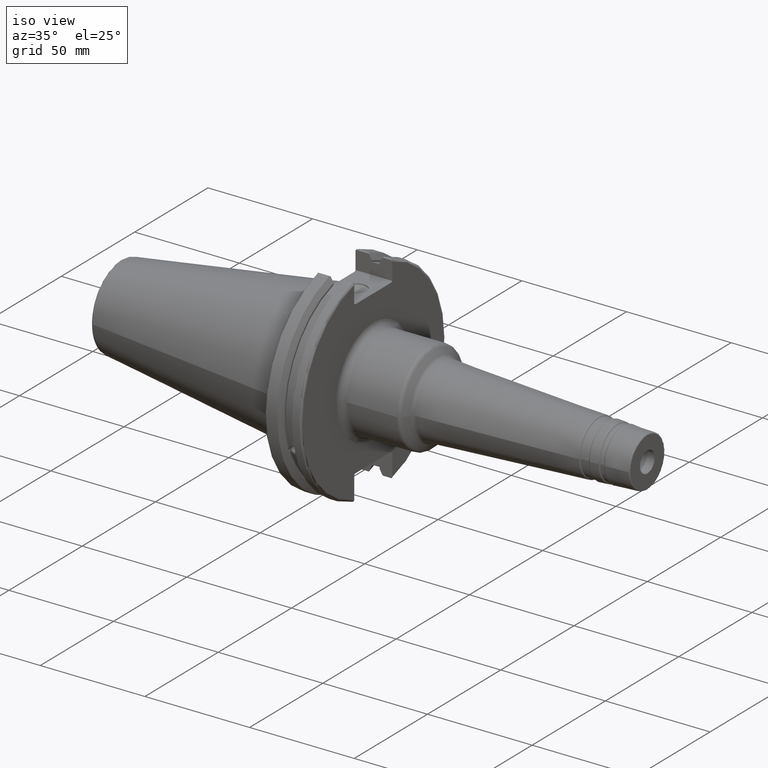
[diagram: clean part render]
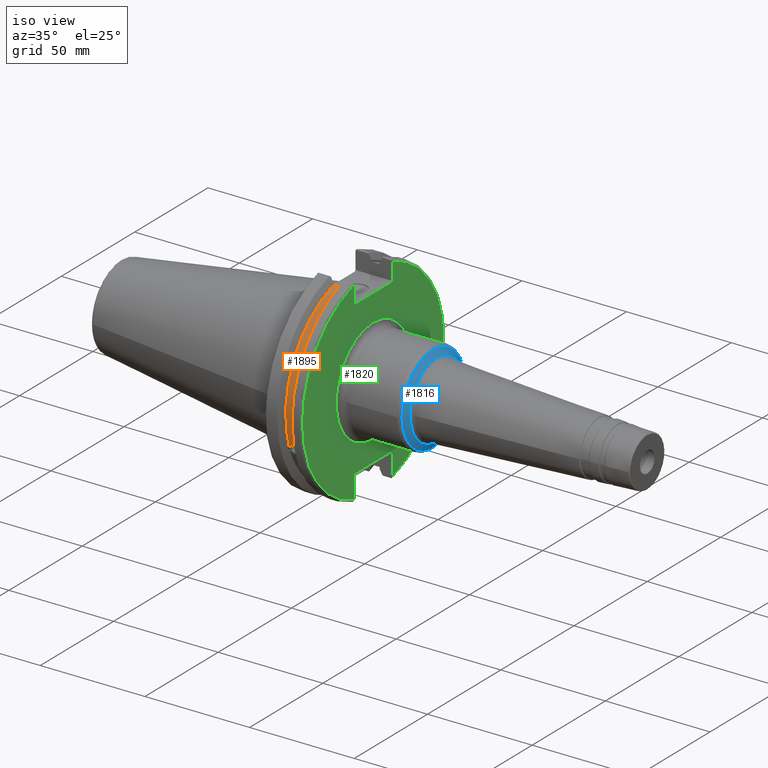
[diagram: same view with three faces highlighted in distinct colors, each labeled with its STEP entity id]
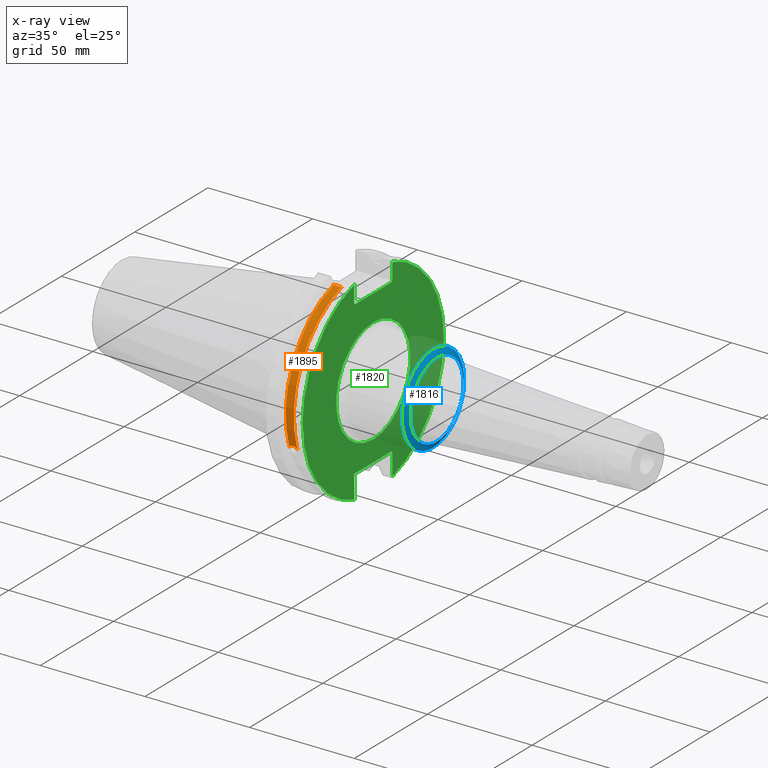
[diagram: x-ray of the same camera — body ghosted, the three highlighted faces saturated]
A machine part, iso view with three faces highlighted in distinct colors.
The next image is the same camera in x-ray (body ghosted, the three faces saturated) — at least one of them is partly hidden behind the body in this view.
Their STEP definitions:

[orange] entity #1895 — the highlighted cylindrical surface (partial cylindrical patch) has radius 45.6435 mm, axis along (1, 0, 0).
#141=B_SPLINE_CURVE_WITH_KNOTS('',3,(#3097,#3098,#3099,#3100,#3101,#3102,
#3103,#3104,#3105,#3106,#3107,#3108,#3109,#3110),.UNSPECIFIED.,.F.,.F.,
(4,2,2,2,2,2,4),(0.40154831257669,0.47469709549563,0.553813286063442,0.632929476631253,
0.712045667199065,0.791161857766876,0.864310640685817),.UNSPECIFIED.);
#271=FACE_OUTER_BOUND('',#392,.T.);
#392=EDGE_LOOP('',(#1755,#1756,#1757,#1758));
#458=LINE('',#3559,#559);
#559=VECTOR('',#2531,10.);
#720=CIRCLE('',#2145,45.6435);
#721=CIRCLE('',#2147,45.6435);
#801=VERTEX_POINT('',#3094);
#802=VERTEX_POINT('',#3096);
#872=VERTEX_POINT('',#3556);
#873=VERTEX_POINT('',#3558);
#1021=EDGE_CURVE('',#802,#801,#141,.T.);
#1117=EDGE_CURVE('',#873,#872,#458,.T.);
#1195=EDGE_CURVE('',#872,#802,#720,.T.);
#1196=EDGE_CURVE('',#873,#801,#721,.T.);
#1755=ORIENTED_EDGE('',*,*,#1021,.T.);
#1756=ORIENTED_EDGE('',*,*,#1196,.F.);
#1757=ORIENTED_EDGE('',*,*,#1117,.T.);
#1758=ORIENTED_EDGE('',*,*,#1195,.T.);
#1793=CYLINDRICAL_SURFACE('',#2146,45.6435);
#1895=ADVANCED_FACE('',(#271),#1793,.T.);
#2145=AXIS2_PLACEMENT_3D('',#3767,#2700,#2701);
#2146=AXIS2_PLACEMENT_3D('',#3768,#2702,#2703);
#2147=AXIS2_PLACEMENT_3D('',#3769,#2704,#2705);
#2531=DIRECTION('',(-1.,0.,0.));
#2700=DIRECTION('center_axis',(1.,0.,0.));
#2701=DIRECTION('ref_axis',(0.,0.,-1.));
#2702=DIRECTION('center_axis',(1.,0.,0.));
#2703=DIRECTION('ref_axis',(0.,-0.888619069115281,0.458645996390125));
#2704=DIRECTION('center_axis',(1.,0.,0.));
#2705=DIRECTION('ref_axis',(0.,0.,-1.));
#3094=CARTESIAN_POINT('',(13.042,-43.1779814500336,-14.7983448449669));
#3096=CARTESIAN_POINT('',(9.21200000000001,-43.1779814500336,-14.7983448449669));
#3097=CARTESIAN_POINT('Ctrl Pts',(9.21199999999999,-43.1779814500335,-14.7983448449669));
#3098=CARTESIAN_POINT('Ctrl Pts',(9.31822177598176,-43.2545173750974,-14.5750315766731));
#3099=CARTESIAN_POINT('Ctrl Pts',(9.46970807557665,-43.3223492818373,-14.3712521044637));
#3100=CARTESIAN_POINT('Ctrl Pts',(9.82850503400179,-43.4340904392251,-14.0300988117073));
#3101=CARTESIAN_POINT('Ctrl Pts',(10.0646203280543,-43.4832903960863,-13.8760243976176));
#3102=CARTESIAN_POINT('Ctrl Pts',(10.5820059167872,-43.54802519266,-13.6715068146718));
#3103=CARTESIAN_POINT('Ctrl Pts',(10.863279364774,-43.5636826100883,-13.6211104428929));
#3104=CARTESIAN_POINT('Ctrl Pts',(11.390720635226,-43.5636826100883,-13.6211104428929));
#3105=CARTESIAN_POINT('Ctrl Pts',(11.6719940832128,-43.54802519266,-13.6715068146718));
#3106=CARTESIAN_POINT('Ctrl Pts',(12.1893796719457,-43.4832903960863,-13.8760243976176));
#3107=CARTESIAN_POINT('Ctrl Pts',(12.4254949659982,-43.4340904392251,-14.0300988117073));
#3108=CARTESIAN_POINT('Ctrl Pts',(12.7842919244233,-43.3223492818373,-14.3712521044637));
#3109=CARTESIAN_POINT('Ctrl Pts',(12.9357782240182,-43.2545173750974,-14.5750315766731));
#3110=CARTESIAN_POINT('Ctrl Pts',(13.042,-43.1779814500335,-14.7983448449669));
#3556=CARTESIAN_POINT('',(9.21200000000001,-12.95,43.7678716897452));
#3558=CARTESIAN_POINT('',(13.042,-12.95,43.7678716897452));
#3559=CARTESIAN_POINT('',(11.127,-12.95,43.7678716897452));
#3767=CARTESIAN_POINT('Origin',(9.21200000000001,0.,0.));
#3768=CARTESIAN_POINT('Origin',(11.127,0.,0.));
#3769=CARTESIAN_POINT('Origin',(13.042,0.,0.));

[blue] entity #1816 — the highlighted conical surface has half-angle 60 deg.
#82=CONICAL_SURFACE('',#1996,19.7453889641521,1.0471975511966);
#192=FACE_OUTER_BOUND('',#299,.T.);
#299=EDGE_LOOP('',(#1323,#1324,#1325,#1326,#1327,#1328));
#407=LINE('',#2921,#508);
#508=VECTOR('',#2314,19.7453889641521);
#649=CIRCLE('',#1993,18.181204786337);
#651=CIRCLE('',#1995,18.181204786337);
#652=CIRCLE('',#1997,21.25);
#653=CIRCLE('',#1998,21.25);
#768=VERTEX_POINT('',#2914);
#769=VERTEX_POINT('',#2915);
#770=VERTEX_POINT('',#2920);
#771=VERTEX_POINT('',#2922);
#978=EDGE_CURVE('',#768,#769,#649,.T.);
#980=EDGE_CURVE('',#769,#768,#651,.T.);
#981=EDGE_CURVE('',#768,#770,#407,.T.);
#982=EDGE_CURVE('',#771,#770,#652,.T.);
#983=EDGE_CURVE('',#770,#771,#653,.T.);
#1323=ORIENTED_EDGE('',*,*,#978,.F.);
#1324=ORIENTED_EDGE('',*,*,#981,.T.);
#1325=ORIENTED_EDGE('',*,*,#982,.F.);
#1326=ORIENTED_EDGE('',*,*,#983,.F.);
#1327=ORIENTED_EDGE('',*,*,#981,.F.);
#1328=ORIENTED_EDGE('',*,*,#980,.F.);
#1816=ADVANCED_FACE('',(#192),#82,.T.);
#1993=AXIS2_PLACEMENT_3D('',#2916,#2306,#2307);
#1995=AXIS2_PLACEMENT_3D('',#2918,#2310,#2311);
#1996=AXIS2_PLACEMENT_3D('',#2919,#2312,#2313);
#1997=AXIS2_PLACEMENT_3D('',#2923,#2315,#2316);
#1998=AXIS2_PLACEMENT_3D('',#2924,#2317,#2318);
#2306=DIRECTION('center_axis',(1.,0.,0.));
#2307=DIRECTION('ref_axis',(0.,-1.,3.06161699786838E-17));
#2310=DIRECTION('center_axis',(1.,0.,0.));
#2311=DIRECTION('ref_axis',(0.,-1.,3.06161699786838E-17));
#2312=DIRECTION('center_axis',(-1.,0.,0.));
#2313=DIRECTION('ref_axis',(0.,1.,0.));
#2314=DIRECTION('',(-0.5,-0.866025403784438,-1.06057523872491E-16));
#2315=DIRECTION('center_axis',(-1.,0.,0.));
#2316=DIRECTION('ref_axis',(0.,-1.,3.06161699786838E-17));
#2317=DIRECTION('center_axis',(-1.,0.,0.));
#2318=DIRECTION('ref_axis',(0.,-1.,3.06161699786838E-17));
#2914=CARTESIAN_POINT('',(49.4570443003616,-18.181204786337,-2.22655542462301E-15));
#2915=CARTESIAN_POINT('',(49.4570443003616,-2.22655542462301E-15,18.181204786337));
#2916=CARTESIAN_POINT('Origin',(49.4570443003616,0.,-2.78319428077877E-15));
#2918=CARTESIAN_POINT('Origin',(49.4570443003616,0.,-2.78319428077877E-15));
#2919=CARTESIAN_POINT('Origin',(48.5539621442379,0.,0.));
#2920=CARTESIAN_POINT('',(47.6852745576654,-21.25,-2.60237444818813E-15));
#2921=CARTESIAN_POINT('',(48.5539621442379,-19.7453889641521,-2.41811273928683E-15));
#2922=CARTESIAN_POINT('',(47.6852745576654,-2.60237444818813E-15,21.25));
#2923=CARTESIAN_POINT('Origin',(47.6852745576654,0.,-3.25296806023516E-15));
#2924=CARTESIAN_POINT('Origin',(47.6852745576654,0.,-3.25296806023516E-15));

[green] entity #1820 — the highlighted planar face has unit normal (1, 0, 0).
#36=PLANE('',#2009);
#116=FACE_BOUND('',#304,.T.);
#196=FACE_OUTER_BOUND('',#303,.T.);
#303=EDGE_LOOP('',(#1346,#1347,#1348,#1349,#1350,#1351,#1352,#1353,#1354,
#1355,#1356,#1357));
#304=EDGE_LOOP('',(#1358));
#409=LINE('',#2946,#510);
#410=LINE('',#2948,#511);
#411=LINE('',#2950,#512);
#412=LINE('',#2952,#513);
#413=LINE('',#2954,#514);
#414=LINE('',#2958,#515);
#415=LINE('',#2960,#516);
#416=LINE('',#2962,#517);
#417=LINE('',#2964,#518);
#418=LINE('',#2965,#519);
#510=VECTOR('',#2344,10.);
#511=VECTOR('',#2345,10.);
#512=VECTOR('',#2346,10.);
#513=VECTOR('',#2347,10.);
#514=VECTOR('',#2348,10.);
#515=VECTOR('',#2351,10.);
#516=VECTOR('',#2352,10.);
#517=VECTOR('',#2353,10.);
#518=VECTOR('',#2354,10.);
#519=VECTOR('',#2355,10.);
#660=CIRCLE('',#2008,25.25);
#661=CIRCLE('',#2010,48.2125);
#662=CIRCLE('',#2011,48.2125);
#776=VERTEX_POINT('',#2938);
#777=VERTEX_POINT('',#2942);
#778=VERTEX_POINT('',#2943);
#779=VERTEX_POINT('',#2945);
#780=VERTEX_POINT('',#2947);
#781=VERTEX_POINT('',#2949);
#782=VERTEX_POINT('',#2951);
#783=VERTEX_POINT('',#2953);
#784=VERTEX_POINT('',#2955);
#785=VERTEX_POINT('',#2957);
#786=VERTEX_POINT('',#2959);
#787=VERTEX_POINT('',#2961);
#788=VERTEX_POINT('',#2963);
#991=EDGE_CURVE('',#776,#776,#660,.T.);
#992=EDGE_CURVE('',#777,#778,#661,.T.);
#993=EDGE_CURVE('',#777,#779,#409,.T.);
#994=EDGE_CURVE('',#780,#779,#410,.T.);
#995=EDGE_CURVE('',#780,#781,#411,.T.);
#996=EDGE_CURVE('',#782,#781,#412,.T.);
#997=EDGE_CURVE('',#782,#783,#413,.T.);
#998=EDGE_CURVE('',#784,#783,#662,.T.);
#999=EDGE_CURVE('',#784,#785,#414,.T.);
#1000=EDGE_CURVE('',#786,#785,#415,.T.);
#1001=EDGE_CURVE('',#786,#787,#416,.T.);
#1002=EDGE_CURVE('',#788,#787,#417,.T.);
#1003=EDGE_CURVE('',#788,#778,#418,.T.);
#1346=ORIENTED_EDGE('',*,*,#992,.F.);
#1347=ORIENTED_EDGE('',*,*,#993,.T.);
#1348=ORIENTED_EDGE('',*,*,#994,.F.);
#1349=ORIENTED_EDGE('',*,*,#995,.T.);
#1350=ORIENTED_EDGE('',*,*,#996,.F.);
#1351=ORIENTED_EDGE('',*,*,#997,.T.);
#1352=ORIENTED_EDGE('',*,*,#998,.F.);
#1353=ORIENTED_EDGE('',*,*,#999,.T.);
#1354=ORIENTED_EDGE('',*,*,#1000,.F.);
#1355=ORIENTED_EDGE('',*,*,#1001,.T.);
#1356=ORIENTED_EDGE('',*,*,#1002,.F.);
#1357=ORIENTED_EDGE('',*,*,#1003,.T.);
#1358=ORIENTED_EDGE('',*,*,#991,.F.);
#1820=ADVANCED_FACE('',(#196,#116),#36,.T.);
#2008=AXIS2_PLACEMENT_3D('',#2940,#2338,#2339);
#2009=AXIS2_PLACEMENT_3D('',#2941,#2340,#2341);
#2010=AXIS2_PLACEMENT_3D('',#2944,#2342,#2343);
#2011=AXIS2_PLACEMENT_3D('',#2956,#2349,#2350);
#2338=DIRECTION('center_axis',(1.,0.,0.));
#2339=DIRECTION('ref_axis',(0.,-1.,-1.22464679914735E-16));
#2340=DIRECTION('center_axis',(1.,0.,0.));
#2341=DIRECTION('ref_axis',(0.,0.,-1.));
#2342=DIRECTION('center_axis',(-1.,0.,0.));
#2343=DIRECTION('ref_axis',(0.,1.,-6.12323399573677E-17));
#2344=DIRECTION('',(0.,0.,-1.));
#2345=DIRECTION('',(0.,0.707106781186549,0.707106781186546));
#2346=DIRECTION('',(0.,-1.,0.));
#2347=DIRECTION('',(0.,0.707106781186549,-0.707106781186546));
#2348=DIRECTION('',(0.,0.,1.));
#2349=DIRECTION('center_axis',(-1.,0.,0.));
#2350=DIRECTION('ref_axis',(0.,-1.,1.60812264967664E-16));
#2351=DIRECTION('',(0.,0.,1.));
#2352=DIRECTION('',(0.,-0.707106781186549,-0.707106781186546));
#2353=DIRECTION('',(0.,1.,0.));
#2354=DIRECTION('',(0.,-0.707106781186548,0.707106781186548));
#2355=DIRECTION('',(0.,0.,-1.));
#2938=CARTESIAN_POINT('',(19.05,-3.09223316784707E-15,-25.25));
#2940=CARTESIAN_POINT('Origin',(19.05,0.,0.));
#2941=CARTESIAN_POINT('Origin',(19.05,0.,0.));
#2942=CARTESIAN_POINT('',(19.05,12.95,46.4407434937254));
#2943=CARTESIAN_POINT('',(19.05,12.95,-46.4407434937254));
#2944=CARTESIAN_POINT('Origin',(19.05,0.,0.));
#2945=CARTESIAN_POINT('',(19.05,12.95,38.219));
#2946=CARTESIAN_POINT('',(19.05,12.95,18.8595));
#2947=CARTESIAN_POINT('',(19.05,12.45,37.719));
#2948=CARTESIAN_POINT('',(19.05,0.0327499999999836,25.30175));
#2949=CARTESIAN_POINT('',(19.05,-12.45,37.719));
#2950=CARTESIAN_POINT('',(19.05,0.,37.719));
#2951=CARTESIAN_POINT('',(19.05,-12.95,38.219));
#2952=CARTESIAN_POINT('',(19.05,-0.0327499999999817,25.30175));
#2953=CARTESIAN_POINT('',(19.05,-12.95,46.4407434937254));
#2954=CARTESIAN_POINT('',(19.05,-12.95,18.8595));
#2955=CARTESIAN_POINT('',(19.05,-12.95,-46.4407434937254));
#2956=CARTESIAN_POINT('Origin',(19.05,0.,0.));
#2957=CARTESIAN_POINT('',(19.05,-12.95,-35.806));
#2958=CARTESIAN_POINT('',(19.05,-12.95,-17.653));
#2959=CARTESIAN_POINT('',(19.05,-12.45,-35.306));
#2960=CARTESIAN_POINT('',(19.05,-0.635999999999989,-23.492));
#2961=CARTESIAN_POINT('',(19.05,12.45,-35.306));
#2962=CARTESIAN_POINT('',(19.05,-3.88578058618805E-15,-35.306));
#2963=CARTESIAN_POINT('',(19.05,12.95,-35.806));
#2964=CARTESIAN_POINT('',(19.05,0.635999999999995,-23.492));
#2965=CARTESIAN_POINT('',(19.05,12.95,-17.653));